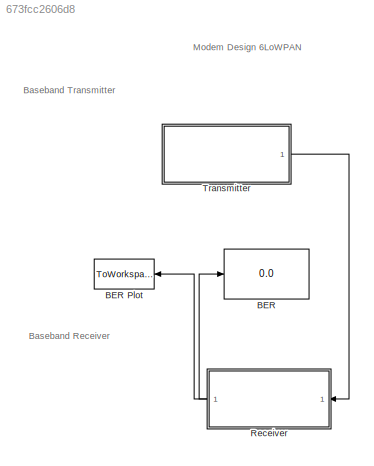
MODEL slx_673fcc2606d8
KIND model
CONFIG AbsTol = auto
CONFIG EnableMultiTasking = off
CONFIG FixedStep = auto
CONFIG MaxStep = auto
CONFIG MinStep = auto
CONFIG RelTol = 1e-3
CONFIG SampleTimeConstraint = Unconstrained
CONFIG Solver = VariableStepAuto
CONFIG SolverName = VariableStepAuto
CONFIG StartTime = 0.0
CONFIG StopTime = 10.0
BLOCK [Display] BER 
  Decimation = 1
  Ports = [1]
BLOCK [ToWorkspace] BER Plot
  FixptAsFi = on
  MaxDataPoints = 2
  Ports = [1]
  SampleTime = -1
  Save2DSignal = 2-D array (concatenate along first dimension)
  VariableName = ber
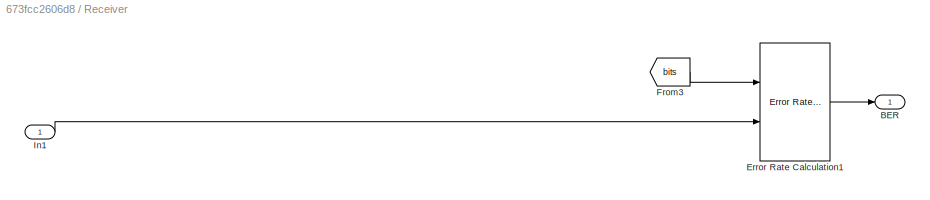
BLOCK [SubSystem] Receiver
  Ports = [1, 1]
  RequestExecContextInheritance = off
BLOCK [Outport] Receiver/BER
  IconDisplay = Port number
  VectorParamsAs1DForOutWhenUnconnected = off
BLOCK [Reference] Receiver/Error Rate Calculation1  REF=commsink2/Error Rate
Calculation
  Ports = [2, 1]
  SourceBlock = commsink2/Error Rate\nCalculation
  SourceProductBaseCode = CM
  SourceProductName = Communications Toolbox
  SourceType = Error Rate Calculation
BLOCK [From] Receiver/From3
  GotoTag = bits
  TagVisibility = global
BLOCK [Inport] Receiver/In1
  IconDisplay = Port number
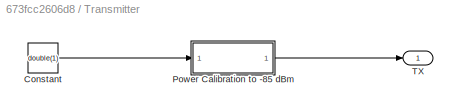
BLOCK [SubSystem] Transmitter
  Ports = [0, 1]
  RequestExecContextInheritance = off
BLOCK [Constant] Transmitter/Constant
  OutDataTypeStr = double
  SampleTime = -1
  Value = double(1)
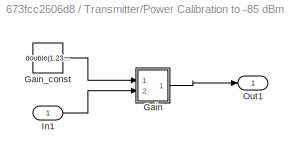
BLOCK [SubSystem] Transmitter/Power Calibration to -85 dBm
  Ports = [1, 1]
  RequestExecContextInheritance = off
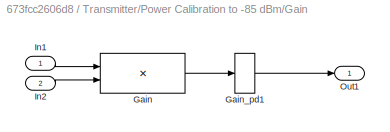
BLOCK [SubSystem] Transmitter/Power Calibration to -85 dBm/Gain
  Ports = [2, 1]
  RequestExecContextInheritance = off
BLOCK [Product] Transmitter/Power Calibration to -85 dBm/Gain/Gain
  InputSameDT = off
  Inputs = **
  OutDataTypeStr = double
  Ports = [2, 1]
  RndMeth = Floor
  SampleTime = 10
  SaturateOnIntegerOverflow = off
BLOCK [Delay] Transmitter/Power Calibration to -85 dBm/Gain/Gain_pd1
  DelayLength = 9
  InputPortMap = u0
  Ports = [1, 1]
BLOCK [Inport] Transmitter/Power Calibration to -85 dBm/Gain/In1
  IconDisplay = Port number
BLOCK [Inport] Transmitter/Power Calibration to -85 dBm/Gain/In2
  IconDisplay = Port number
  Port = 2
BLOCK [Outport] Transmitter/Power Calibration to -85 dBm/Gain/Out1
  IconDisplay = Port number
BLOCK [Constant] Transmitter/Power Calibration to -85 dBm/Gain_const
  OutDataTypeStr = double
  SampleTime = -1
  Value = double(1.2360897353427064e-06)
BLOCK [Inport] Transmitter/Power Calibration to -85 dBm/In1
  IconDisplay = Port number
  OutDataTypeStr = double
  SampleTime = 10
BLOCK [Outport] Transmitter/Power Calibration to -85 dBm/Out1
  IconDisplay = Port number
BLOCK [Outport] Transmitter/TX
  IconDisplay = Port number
ANNOTATION (root): Baseband Receiver
ANNOTATION (root): Baseband Transmitter
ANNOTATION (root): Modem Design 6LoWPAN
LINE Receiver/Error Rate Calculation1:1 -> Receiver/BER:1
LINE Receiver/From3:1 -> Receiver/Error Rate Calculation1:1
LINE Receiver/In1:1 -> Receiver/Error Rate Calculation1:2
NET Receiver:1 -> BER :1, BER Plot:1
LINE Transmitter/Constant:1 -> Transmitter/Power Calibration to -85 dBm:1
LINE Transmitter/Power Calibration to -85 dBm:1 -> Transmitter/TX:1
LINE Transmitter:1 -> Receiver:1
note: NET lines group one-source signal fan-out (src -> all destinations, sorted); 1:1 wires keep LINE
